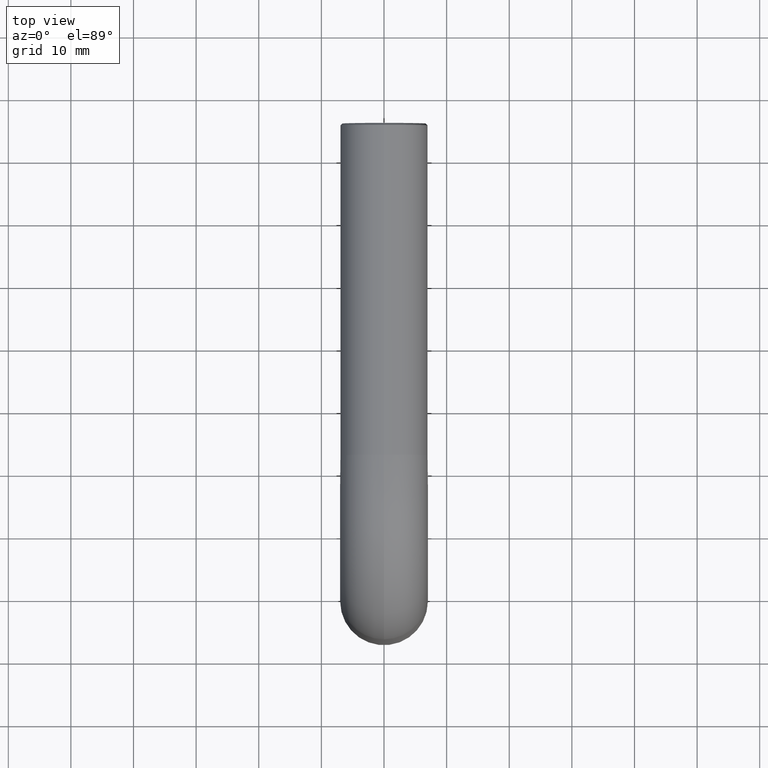
[diagram: clean part render]
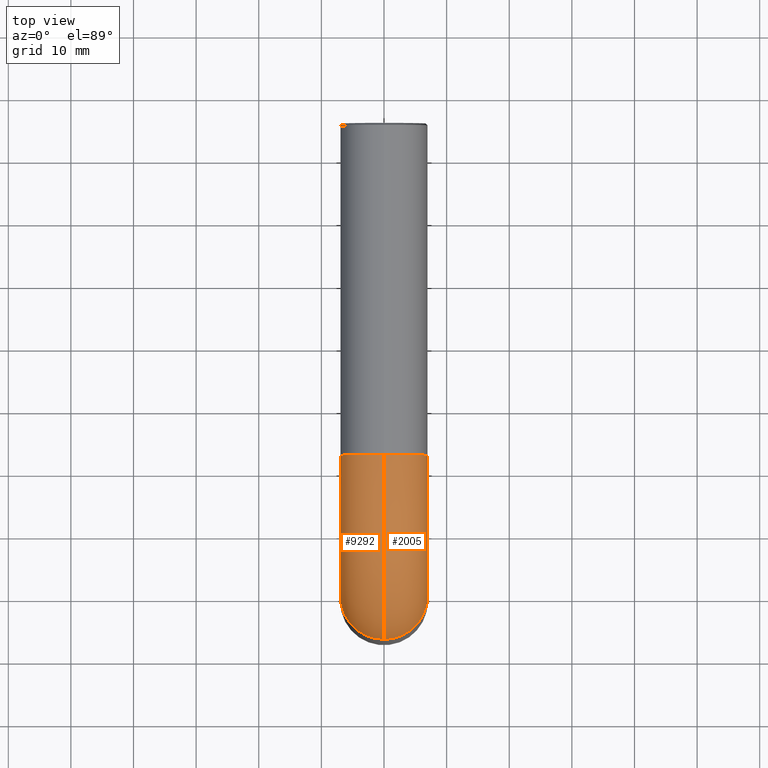
[diagram: same view with one multi-face feature highlighted, each face labeled with its STEP entity id]
A machine part, top view. The highlighted faces form ONE feature: a constant-radius fillet chain: 2 tangent blend faces with common blend radius 7 mm. The faces share edges in the B-rep.
Their STEP definitions:
[1] entity #2005 (Torus):
#213 = CIRCLE ( 'NONE', #7163, 7.000000000000000888 ) ;
#673 = CIRCLE ( 'NONE', #8300, 14.99999999999999289 ) ;
#814 = ORIENTED_EDGE ( 'NONE', *, *, #10102, .T. ) ;
#1254 = VERTEX_POINT ( 'NONE', #4329 ) ;
#1307 = DIRECTION ( 'NONE',  ( 0.000000000000000000, 0.000000000000000000, 1.000000000000000000 ) ) ;
#1323 = DIRECTION ( 'NONE',  ( 0.000000000000000000, 0.000000000000000000, 1.000000000000000000 ) ) ;
#1650 = CIRCLE ( 'NONE', #11810, 7.000000000000000888 ) ;
#1654 = CARTESIAN_POINT ( 'NONE',  ( 0.000000000000000000, 22.00000000000026290, 82.00000000000000000 ) ) ;
#1781 = ORIENTED_EDGE ( 'NONE', *, *, #7919, .T. ) ;
#2005 = ADVANCED_FACE ( 'NONE', ( #7923 ), #10332, .T. ) ;
#2120 = CARTESIAN_POINT ( 'NONE',  ( 8.572527594031467273E-16, 22.00000000000006040, 67.99999999999998579 ) ) ;
#2320 = ORIENTED_EDGE ( 'NONE', *, *, #8538, .T. ) ;
#2344 = DIRECTION ( 'NONE',  ( 0.000000000000000000, 0.000000000000000000, 1.000000000000000000 ) ) ;
#2416 = CARTESIAN_POINT ( 'NONE',  ( 0.000000000000000000, 0.000000000000000000, 52.99999999999983658 ) ) ;
#2501 = AXIS2_PLACEMENT_3D ( 'NONE', #9558, #7482, #2344 ) ;
#2815 = CARTESIAN_POINT ( 'NONE',  ( 8.572527594031474176E-16, 22.00000000000000000, 53.00000000000000000 ) ) ;
#2857 = DIRECTION ( 'NONE',  ( 0.000000000000000000, 1.000000000000000000, -1.459371158509469876E-14 ) ) ;
#2917 = VERTEX_POINT ( 'NONE', #1654 ) ;
#3333 = AXIS2_PLACEMENT_3D ( 'NONE', #8271, #12567, #1323 ) ;
#3413 = DIRECTION ( 'NONE',  ( 0.000000000000000000, 0.000000000000000000, 1.000000000000000000 ) ) ;
#3907 = DIRECTION ( 'NONE',  ( -1.000000000000000000, -0.000000000000000000, -0.000000000000000000 ) ) ;
#3955 = CARTESIAN_POINT ( 'NONE',  ( 0.000000000000000000, 22.00000000000016342, 75.00000000000000000 ) ) ;
#4329 = CARTESIAN_POINT ( 'NONE',  ( 8.572527594031474176E-16, 7.000000000000000888, 52.99999999999983658 ) ) ;
#4451 = CIRCLE ( 'NONE', #10850, 7.000000000000000888 ) ;
#5783 = CARTESIAN_POINT ( 'NONE',  ( 7.000000000000000888, 8.572527594031474176E-16, 52.99999999999983658 ) ) ;
#5825 = ORIENTED_EDGE ( 'NONE', *, *, #9332, .F. ) ;
#6378 = VERTEX_POINT ( 'NONE', #2120 ) ;
#6536 = DIRECTION ( 'NONE',  ( 1.000000000000000000, 0.000000000000000000, 0.000000000000000000 ) ) ;
#7163 = AXIS2_PLACEMENT_3D ( 'NONE', #3955, #2857, #9107 ) ;
#7482 = DIRECTION ( 'NONE',  ( -1.000000000000000000, -0.000000000000000000, -0.000000000000000000 ) ) ;
#7492 = DIRECTION ( 'NONE',  ( 1.000000000000000000, 0.000000000000000000, 0.000000000000000000 ) ) ;
#7827 = EDGE_CURVE ( 'NONE', #2917, #6378, #213, .T. ) ;
#7919 = EDGE_CURVE ( 'NONE', #1254, #6378, #673, .T. ) ;
#7923 = FACE_OUTER_BOUND ( 'NONE', #9515, .T. ) ;
#8271 = CARTESIAN_POINT ( 'NONE',  ( 0.000000000000000000, 22.00000000000000000, 53.00000000000000000 ) ) ;
#8300 = AXIS2_PLACEMENT_3D ( 'NONE', #2815, #3907, #11119 ) ;
#8538 = EDGE_CURVE ( 'NONE', #10599, #1254, #1650, .T. ) ;
#9107 = DIRECTION ( 'NONE',  ( 1.000000000000000000, 0.000000000000000000, 0.000000000000000000 ) ) ;
#9332 = EDGE_CURVE ( 'NONE', #9999, #2917, #12902, .T. ) ;
#9515 = EDGE_LOOP ( 'NONE', ( #5825, #814, #2320, #1781, #12277 ) ) ;
#9522 = CARTESIAN_POINT ( 'NONE',  ( 0.000000000000000000, 0.000000000000000000, 52.99999999999983658 ) ) ;
#9558 = CARTESIAN_POINT ( 'NONE',  ( 0.000000000000000000, 22.00000000000000000, 53.00000000000000000 ) ) ;
#9613 = CARTESIAN_POINT ( 'NONE',  ( 0.000000000000000000, -7.000000000000000000, 52.99999999999983658 ) ) ;
#9999 = VERTEX_POINT ( 'NONE', #9613 ) ;
#10102 = EDGE_CURVE ( 'NONE', #9999, #10599, #4451, .T. ) ;
#10332 = TOROIDAL_SURFACE ( 'NONE', #3333, 22.00000000000000000, 7.000000000000000888 ) ;
#10599 = VERTEX_POINT ( 'NONE', #5783 ) ;
#10850 = AXIS2_PLACEMENT_3D ( 'NONE', #2416, #1307, #6536 ) ;
#11119 = DIRECTION ( 'NONE',  ( 0.000000000000000000, 0.000000000000000000, 1.000000000000000000 ) ) ;
#11810 = AXIS2_PLACEMENT_3D ( 'NONE', #9522, #3413, #7492 ) ;
#12277 = ORIENTED_EDGE ( 'NONE', *, *, #7827, .F. ) ;
#12567 = DIRECTION ( 'NONE',  ( -1.000000000000000000, -0.000000000000000000, -0.000000000000000000 ) ) ;
#12902 = CIRCLE ( 'NONE', #2501, 28.99999999999998934 ) ;
[2] entity #9292 (Torus):
#183 = FACE_OUTER_BOUND ( 'NONE', #9085, .T. ) ;
#364 = DIRECTION ( 'NONE',  ( 1.000000000000000000, 0.000000000000000000, 0.000000000000000000 ) ) ;
#448 = DIRECTION ( 'NONE',  ( 1.000000000000000000, 0.000000000000000000, 0.000000000000000000 ) ) ;
#673 = CIRCLE ( 'NONE', #8300, 14.99999999999999289 ) ;
#1254 = VERTEX_POINT ( 'NONE', #4329 ) ;
#1497 = TOROIDAL_SURFACE ( 'NONE', #6752, 22.00000000000000000, 7.000000000000000888 ) ;
#1654 = CARTESIAN_POINT ( 'NONE',  ( 0.000000000000000000, 22.00000000000026290, 82.00000000000000000 ) ) ;
#1911 = ORIENTED_EDGE ( 'NONE', *, *, #9914, .F. ) ;
#2120 = CARTESIAN_POINT ( 'NONE',  ( 8.572527594031467273E-16, 22.00000000000006040, 67.99999999999998579 ) ) ;
#2287 = ORIENTED_EDGE ( 'NONE', *, *, #7919, .F. ) ;
#2344 = DIRECTION ( 'NONE',  ( 0.000000000000000000, 0.000000000000000000, 1.000000000000000000 ) ) ;
#2357 = CARTESIAN_POINT ( 'NONE',  ( -7.000000000000000888, 0.000000000000000000, 52.99999999999983658 ) ) ;
#2367 = DIRECTION ( 'NONE',  ( 0.000000000000000000, 1.000000000000000000, -1.459371158509469876E-14 ) ) ;
#2501 = AXIS2_PLACEMENT_3D ( 'NONE', #9558, #7482, #2344 ) ;
#2815 = CARTESIAN_POINT ( 'NONE',  ( 8.572527594031474176E-16, 22.00000000000000000, 53.00000000000000000 ) ) ;
#2917 = VERTEX_POINT ( 'NONE', #1654 ) ;
#3448 = CARTESIAN_POINT ( 'NONE',  ( 0.000000000000000000, 22.00000000000000000, 53.00000000000000000 ) ) ;
#3469 = CIRCLE ( 'NONE', #6396, 7.000000000000000888 ) ;
#3627 = ORIENTED_EDGE ( 'NONE', *, *, #9332, .T. ) ;
#3907 = DIRECTION ( 'NONE',  ( -1.000000000000000000, -0.000000000000000000, -0.000000000000000000 ) ) ;
#4049 = AXIS2_PLACEMENT_3D ( 'NONE', #10803, #12919, #448 ) ;
#4329 = CARTESIAN_POINT ( 'NONE',  ( 8.572527594031474176E-16, 7.000000000000000888, 52.99999999999983658 ) ) ;
#4767 = EDGE_CURVE ( 'NONE', #1254, #8505, #7214, .T. ) ;
#5343 = DIRECTION ( 'NONE',  ( 0.000000000000000000, 0.000000000000000000, 1.000000000000000000 ) ) ;
#5633 = DIRECTION ( 'NONE',  ( 1.000000000000000000, 0.000000000000000000, 0.000000000000000000 ) ) ;
#6188 = AXIS2_PLACEMENT_3D ( 'NONE', #10053, #8724, #5633 ) ;
#6378 = VERTEX_POINT ( 'NONE', #2120 ) ;
#6396 = AXIS2_PLACEMENT_3D ( 'NONE', #8587, #2367, #364 ) ;
#6752 = AXIS2_PLACEMENT_3D ( 'NONE', #3448, #8519, #5343 ) ;
#7214 = CIRCLE ( 'NONE', #6188, 7.000000000000000888 ) ;
#7482 = DIRECTION ( 'NONE',  ( -1.000000000000000000, -0.000000000000000000, -0.000000000000000000 ) ) ;
#7592 = ORIENTED_EDGE ( 'NONE', *, *, #4767, .T. ) ;
#7919 = EDGE_CURVE ( 'NONE', #1254, #6378, #673, .T. ) ;
#8300 = AXIS2_PLACEMENT_3D ( 'NONE', #2815, #3907, #11119 ) ;
#8505 = VERTEX_POINT ( 'NONE', #2357 ) ;
#8519 = DIRECTION ( 'NONE',  ( -1.000000000000000000, -0.000000000000000000, -0.000000000000000000 ) ) ;
#8587 = CARTESIAN_POINT ( 'NONE',  ( 0.000000000000000000, 22.00000000000016342, 75.00000000000000000 ) ) ;
#8724 = DIRECTION ( 'NONE',  ( 0.000000000000000000, 0.000000000000000000, 1.000000000000000000 ) ) ;
#9085 = EDGE_LOOP ( 'NONE', ( #9223, #3627, #1911, #2287, #7592 ) ) ;
#9223 = ORIENTED_EDGE ( 'NONE', *, *, #12304, .T. ) ;
#9292 = ADVANCED_FACE ( 'NONE', ( #183 ), #1497, .T. ) ;
#9332 = EDGE_CURVE ( 'NONE', #9999, #2917, #12902, .T. ) ;
#9558 = CARTESIAN_POINT ( 'NONE',  ( 0.000000000000000000, 22.00000000000000000, 53.00000000000000000 ) ) ;
#9613 = CARTESIAN_POINT ( 'NONE',  ( 0.000000000000000000, -7.000000000000000000, 52.99999999999983658 ) ) ;
#9914 = EDGE_CURVE ( 'NONE', #6378, #2917, #3469, .T. ) ;
#9999 = VERTEX_POINT ( 'NONE', #9613 ) ;
#10053 = CARTESIAN_POINT ( 'NONE',  ( 0.000000000000000000, 0.000000000000000000, 52.99999999999983658 ) ) ;
#10803 = CARTESIAN_POINT ( 'NONE',  ( 0.000000000000000000, 0.000000000000000000, 52.99999999999983658 ) ) ;
#11119 = DIRECTION ( 'NONE',  ( 0.000000000000000000, 0.000000000000000000, 1.000000000000000000 ) ) ;
#11453 = CIRCLE ( 'NONE', #4049, 7.000000000000000888 ) ;
#12304 = EDGE_CURVE ( 'NONE', #8505, #9999, #11453, .T. ) ;
#12902 = CIRCLE ( 'NONE', #2501, 28.99999999999998934 ) ;
#12919 = DIRECTION ( 'NONE',  ( 0.000000000000000000, 0.000000000000000000, 1.000000000000000000 ) ) ;